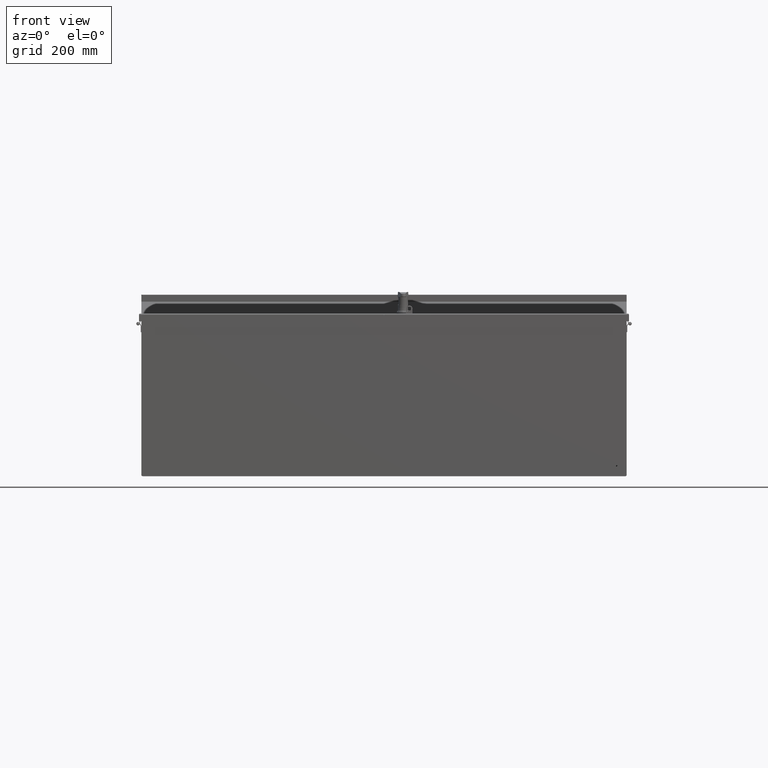
[diagram: clean part render]
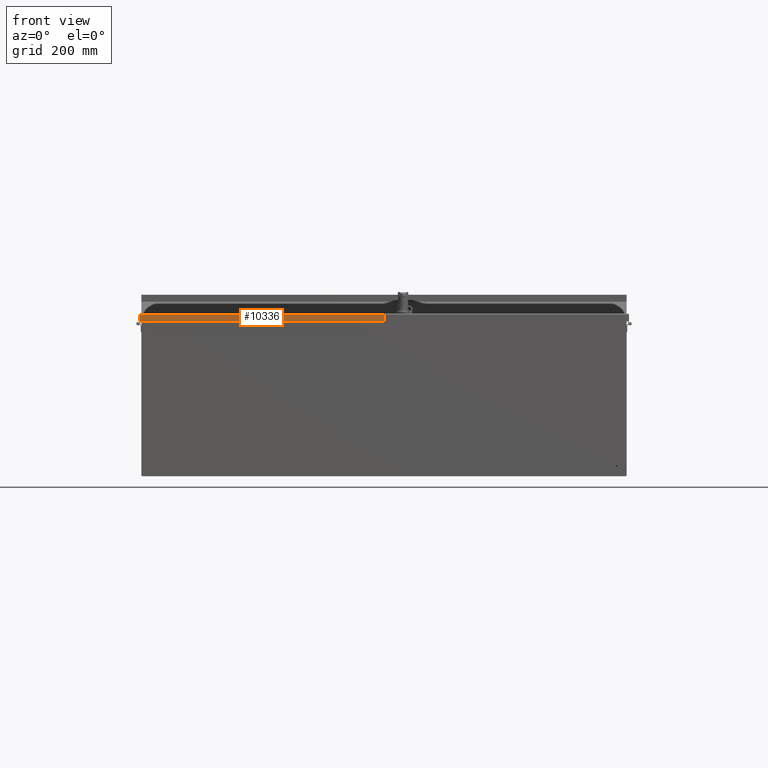
[diagram: same view with one face highlighted and labeled with its STEP entity id]
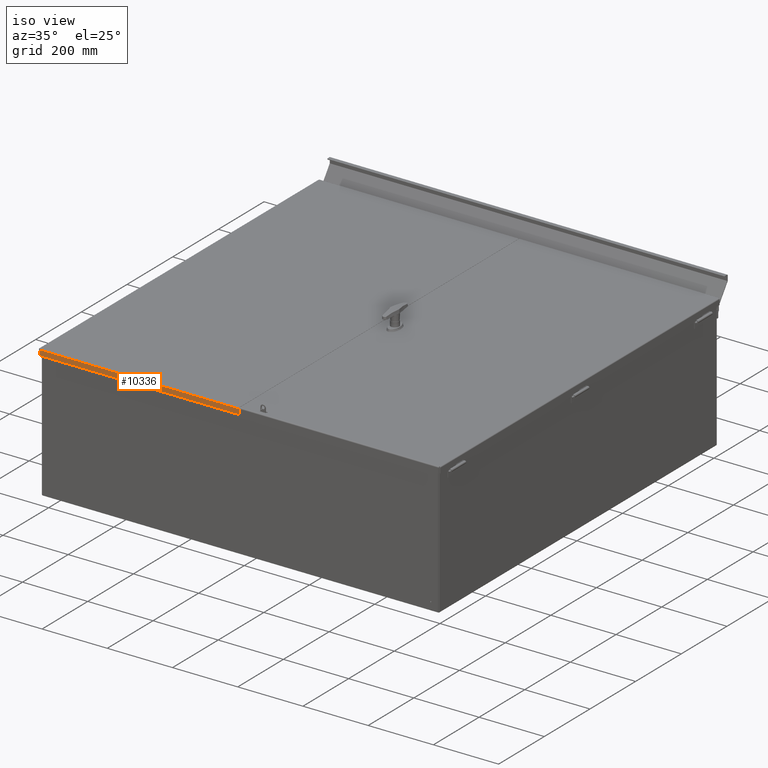
[diagram: same view with one face highlighted and labeled with its STEP entity id]
A machine part, front view. The second image highlights one B-rep face of the part: STEP entity #10336.
A second angle (iso view) of the same face is appended — the face is thin or edge-on in the first view.
In plain terms, the highlighted planar face has unit normal (0, -1, -0).
Its self-contained STEP definition (entity closure, byte-faithful):
#962=PLANE($,#11131);
#1398=FACE_OUTER_BOUND($,#2056,.T.);
#2056=EDGE_LOOP($,(#7722,#7723,#7724,#7725));
#3348=LINE($,#15944,#4144);
#3356=LINE($,#15972,#4152);
#3360=LINE($,#16006,#4156);
#3362=LINE($,#16009,#4158);
#4144=VECTOR($,#12784,24.114001456544);
#4152=VECTOR($,#12802,0.62505);
#4156=VECTOR($,#12808,0.625049999999999);
#4158=VECTOR($,#12812,24.114001456544);
#4897=VERTEX_POINT($,#15942);
#4898=VERTEX_POINT($,#15943);
#4906=VERTEX_POINT($,#15971);
#4908=VERTEX_POINT($,#16005);
#5937=EDGE_CURVE($,#4897,#4898,#3348,.T.);
#5948=EDGE_CURVE($,#4906,#4898,#3356,.T.);
#5953=EDGE_CURVE($,#4897,#4908,#3360,.T.);
#5955=EDGE_CURVE($,#4908,#4906,#3362,.T.);
#7722=ORIENTED_EDGE($,*,*,#5937,.T.);
#7723=ORIENTED_EDGE($,*,*,#5948,.F.);
#7724=ORIENTED_EDGE($,*,*,#5955,.F.);
#7725=ORIENTED_EDGE($,*,*,#5953,.F.);
#10336=ADVANCED_FACE($,(#1398),#962,.T.);
#11131=AXIS2_PLACEMENT_3D($,#16010,#12813,#12814);
#12784=DIRECTION($,(-1.,-2.30645647110102E-016,1.88559804300766E-032));
#12802=DIRECTION($,(1.18822173848915E-029,-5.14531160026499E-014,1.));
#12808=DIRECTION($,(-1.18822173848915E-029,5.14531160026499E-014,-1.));
#12812=DIRECTION($,(-1.,-2.31012116274556E-016,-1.0034909695126E-018));
#12813=DIRECTION('center_axis',(2.30645647110102E-016,-1.,-5.14406976164217E-014));
#12814=DIRECTION('ref_axis',(1.,0.,-2.8199664825479E-016));
#15942=CARTESIAN_POINT('',(12.109375,-24.1875,-0.0312500000000079));
#15943=CARTESIAN_POINT('',(-12.004626456544,-24.1875,-0.0312500000000079));
#15944=CARTESIAN_POINT($,(0.0595763219275129,-24.1875,-0.0312500000000079));
#15971=CARTESIAN_POINT('',(-12.004626456544,-24.1875,-0.656300000000007));
#15972=CARTESIAN_POINT($,(-12.004626456544,-24.1875,-0.0312500000000079));
#16005=CARTESIAN_POINT('',(12.109375,-24.1875,-0.656300000000007));
#16006=CARTESIAN_POINT($,(12.109375,-24.1875,-0.0312500000000079));
#16009=CARTESIAN_POINT($,(12.109375,-24.1875,-0.656300000000007));
#16010=CARTESIAN_POINT('Origin',(0.0566776438550251,-24.1875,-0.30441946789483));